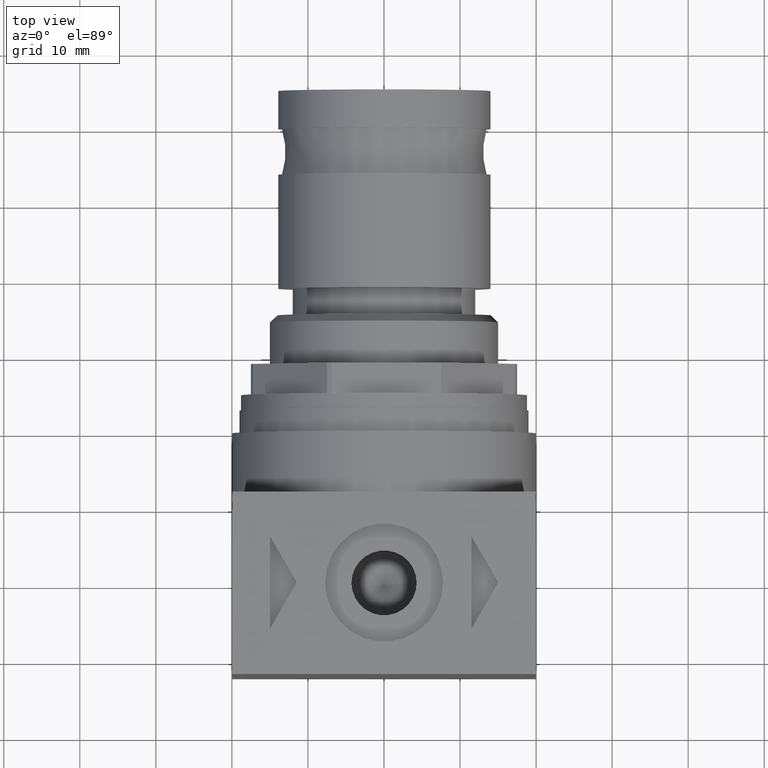
[diagram: clean part render]
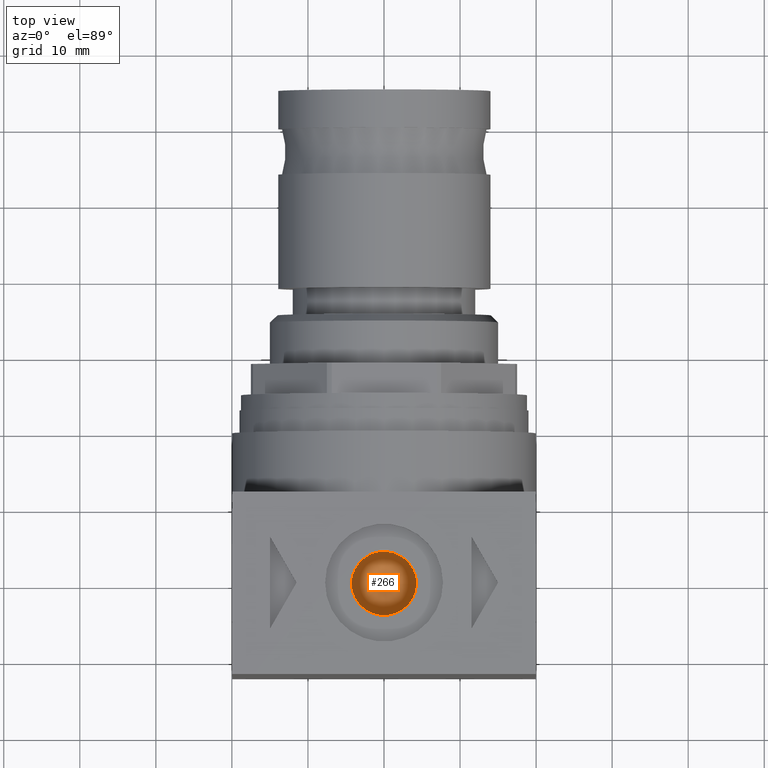
[diagram: same view with one face highlighted and labeled with its STEP entity id]
A machine part, top view. The second image highlights one B-rep face of the part: STEP entity #266.
In plain terms, the highlighted conical surface has half-angle 60 deg.
Its self-contained STEP definition (entity closure, byte-faithful):
#266 = ADVANCED_FACE( '', ( #600, #601 ), #602, .F. );
#600 = FACE_BOUND( '', #1045, .T. );
#601 = FACE_OUTER_BOUND( '', #1046, .T. );
#602 = CONICAL_SURFACE( '', #1047, 4.28300000000000, 1.04719755119660 );
#1045 = VERTEX_LOOP( '', #1601 );
#1046 = EDGE_LOOP( '', ( #1602 ) );
#1047 = AXIS2_PLACEMENT_3D( '', #1603, #1604, #1605 );
#1601 = VERTEX_POINT( '', #2543 );
#1602 = ORIENTED_EDGE( '', *, *, #2457, .F. );
#1603 = CARTESIAN_POINT( '', ( 0.000000000000000, 0.000000000000000, 10.2000000000000 ) );
#1604 = DIRECTION( '', ( 0.000000000000000, -0.000000000000000, 1.00000000000000 ) );
#1605 = DIRECTION( '', ( 1.00000000000000, 0.000000000000000, -0.000000000000000 ) );
#2457 = EDGE_CURVE( '', #2876, #2876, #2877, .T. );
#2543 = CARTESIAN_POINT( '', ( 0.000000000000000, 0.000000000000000, 7.72720879706083 ) );
#2876 = VERTEX_POINT( '', #3466 );
#2877 = CIRCLE( '', #3467, 4.28300000000000 );
#3466 = CARTESIAN_POINT( '', ( -4.28300000000000, 0.000000000000000, 10.2000000000000 ) );
#3467 = AXIS2_PLACEMENT_3D( '', #4188, #4189, #4190 );
#4188 = CARTESIAN_POINT( '', ( 0.000000000000000, 0.000000000000000, 10.2000000000000 ) );
#4189 = DIRECTION( '', ( -0.000000000000000, 0.000000000000000, -1.00000000000000 ) );
#4190 = DIRECTION( '', ( -1.00000000000000, 0.000000000000000, 0.000000000000000 ) );